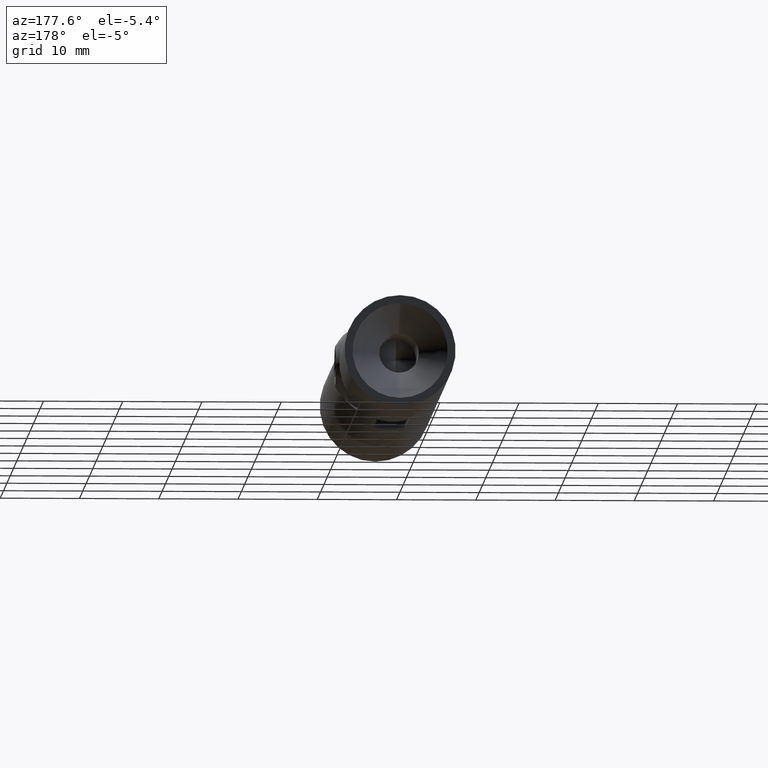
[diagram: clean part render]
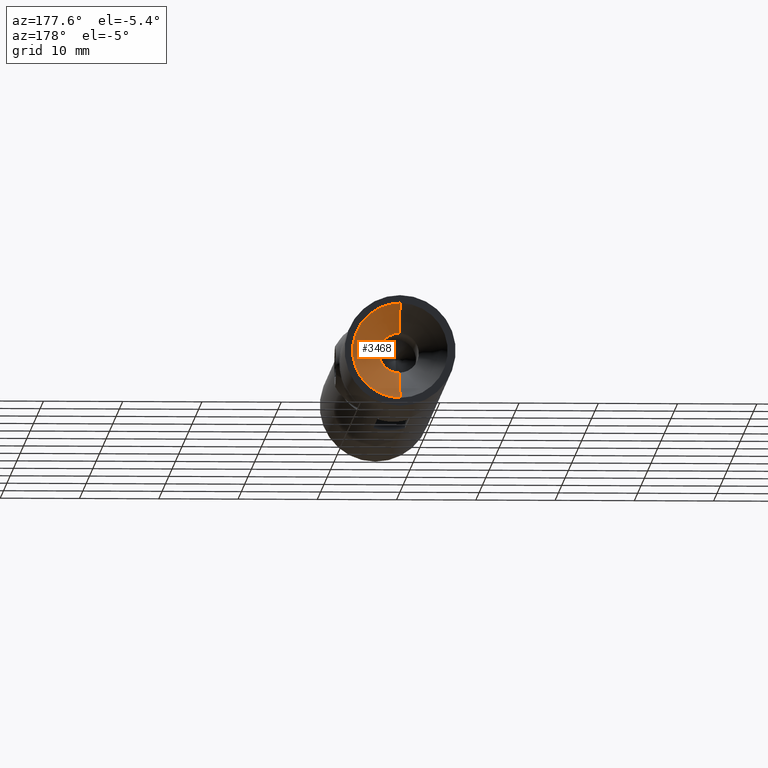
[diagram: same view with one face highlighted and labeled with its STEP entity id]
A machine part, auxiliary view. The second image highlights one B-rep face of the part: STEP entity #3468.
In plain terms, the highlighted conical surface has half-angle 45 deg.
Its self-contained STEP definition (entity closure, byte-faithful):
#1167 = VECTOR ( 'NONE', #4994, 1000.000000000000100 ) ;
#1316 = CARTESIAN_POINT ( 'NONE',  ( 0.0000000000000000000, 28.50000000000000400, 6.000000000000000000 ) ) ;
#2456 = CARTESIAN_POINT ( 'NONE',  ( 0.0000000000000000000, 28.50000000000000400, 0.0000000000000000000 ) ) ;
#2460 = EDGE_CURVE ( 'NONE', #5260, #2660, #14407, .T. ) ;
#2660 = VERTEX_POINT ( 'NONE', #14401 ) ;
#2755 = EDGE_CURVE ( 'NONE', #5260, #11296, #4359, .T. ) ;
#3183 = CARTESIAN_POINT ( 'NONE',  ( 0.0000000000000000000, 25.00000000000000000, 0.0000000000000000000 ) ) ;
#3446 = VERTEX_POINT ( 'NONE', #1316 ) ;
#3468 = ADVANCED_FACE ( 'NONE', ( #8206 ), #13766, .F. ) ;
#4359 = CIRCLE ( 'NONE', #11897, 2.499999999999993300 ) ;
#4619 = DIRECTION ( 'NONE',  ( -0.0000000000000000000, 1.000000000000000000, -0.0000000000000000000 ) ) ;
#4932 = AXIS2_PLACEMENT_3D ( 'NONE', #5957, #10549, #10646 ) ;
#4994 = DIRECTION ( 'NONE',  ( 0.0000000000000000000, 0.7071067811865470200, 0.7071067811865479100 ) ) ;
#5260 = VERTEX_POINT ( 'NONE', #14088 ) ;
#5957 = CARTESIAN_POINT ( 'NONE',  ( 0.0000000000000000000, 28.50000000000000400, 0.0000000000000000000 ) ) ;
#7296 = CIRCLE ( 'NONE', #4932, 6.000000000000000000 ) ;
#7621 = AXIS2_PLACEMENT_3D ( 'NONE', #2456, #4619, #12506 ) ;
#7921 = EDGE_LOOP ( 'NONE', ( #9915, #14584, #13128, #11574 ) ) ;
#8170 = CARTESIAN_POINT ( 'NONE',  ( 0.0000000000000000000, 28.50000000000000400, 6.000000000000000000 ) ) ;
#8206 = FACE_OUTER_BOUND ( 'NONE', #7921, .T. ) ;
#8731 = LINE ( 'NONE', #8170, #1167 ) ;
#9915 = ORIENTED_EDGE ( 'NONE', *, *, #2460, .F. ) ;
#10549 = DIRECTION ( 'NONE',  ( -0.0000000000000000000, 1.000000000000000000, -0.0000000000000000000 ) ) ;
#10592 = DIRECTION ( 'NONE',  ( 8.659560562354937800E-017, 0.7071067811865470200, -0.7071067811865479100 ) ) ;
#10646 = DIRECTION ( 'NONE',  ( 0.0000000000000000000, 0.0000000000000000000, 1.000000000000000000 ) ) ;
#11079 = DIRECTION ( 'NONE',  ( 0.0000000000000000000, 0.0000000000000000000, 1.000000000000000000 ) ) ;
#11296 = VERTEX_POINT ( 'NONE', #14391 ) ;
#11343 = EDGE_CURVE ( 'NONE', #3446, #2660, #7296, .T. ) ;
#11431 = VECTOR ( 'NONE', #10592, 1000.000000000000100 ) ;
#11574 = ORIENTED_EDGE ( 'NONE', *, *, #11343, .T. ) ;
#11897 = AXIS2_PLACEMENT_3D ( 'NONE', #3183, #14497, #11079 ) ;
#12506 = DIRECTION ( 'NONE',  ( 0.0000000000000000000, 0.0000000000000000000, 1.000000000000000000 ) ) ;
#12901 = CARTESIAN_POINT ( 'NONE',  ( 7.347880794884119700E-016, 28.50000000000000400, -6.000000000000000000 ) ) ;
#13128 = ORIENTED_EDGE ( 'NONE', *, *, #13478, .T. ) ;
#13478 = EDGE_CURVE ( 'NONE', #11296, #3446, #8731, .T. ) ;
#13766 = CONICAL_SURFACE ( 'NONE', #7621, 6.000000000000000000, 0.7853981633974489500 ) ;
#14088 = CARTESIAN_POINT ( 'NONE',  ( 5.204748896376252700E-016, 25.00000000000000000, -2.499999999999993300 ) ) ;
#14391 = CARTESIAN_POINT ( 'NONE',  ( 0.0000000000000000000, 25.00000000000000000, 2.499999999999993300 ) ) ;
#14401 = CARTESIAN_POINT ( 'NONE',  ( 7.347880794884119700E-016, 28.50000000000000400, -6.000000000000000000 ) ) ;
#14407 = LINE ( 'NONE', #12901, #11431 ) ;
#14497 = DIRECTION ( 'NONE',  ( 0.0000000000000000000, -1.000000000000000000, 0.0000000000000000000 ) ) ;
#14584 = ORIENTED_EDGE ( 'NONE', *, *, #2755, .T. ) ;